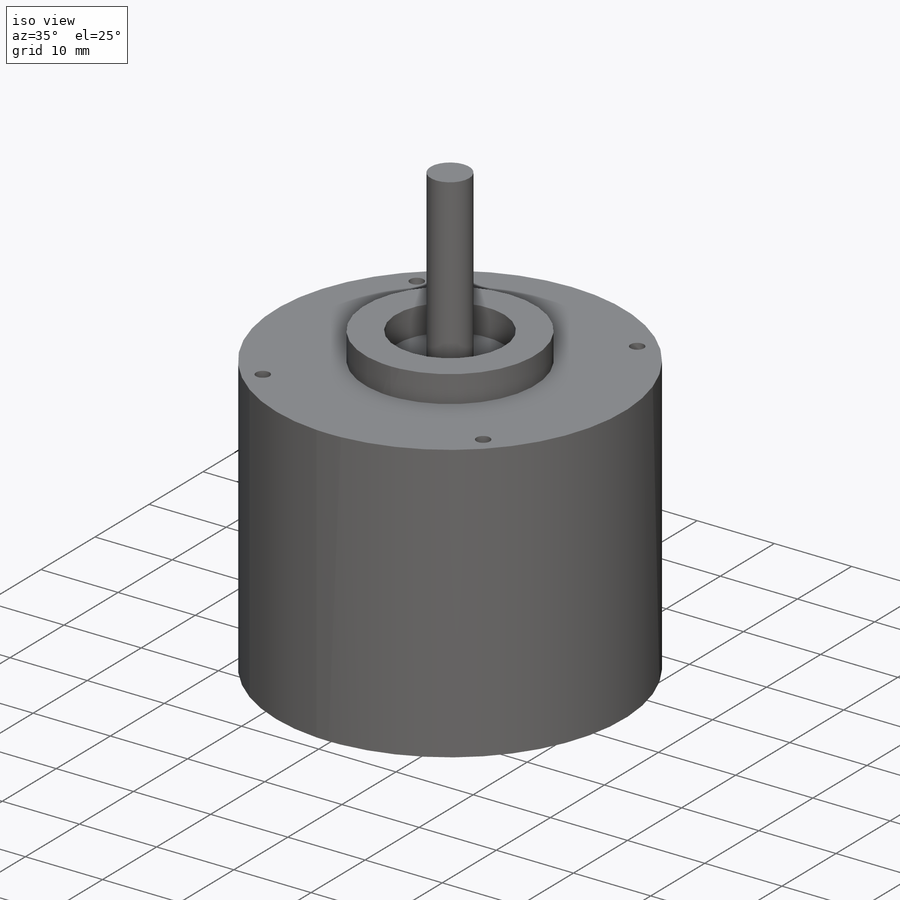
[diagram: iso view]
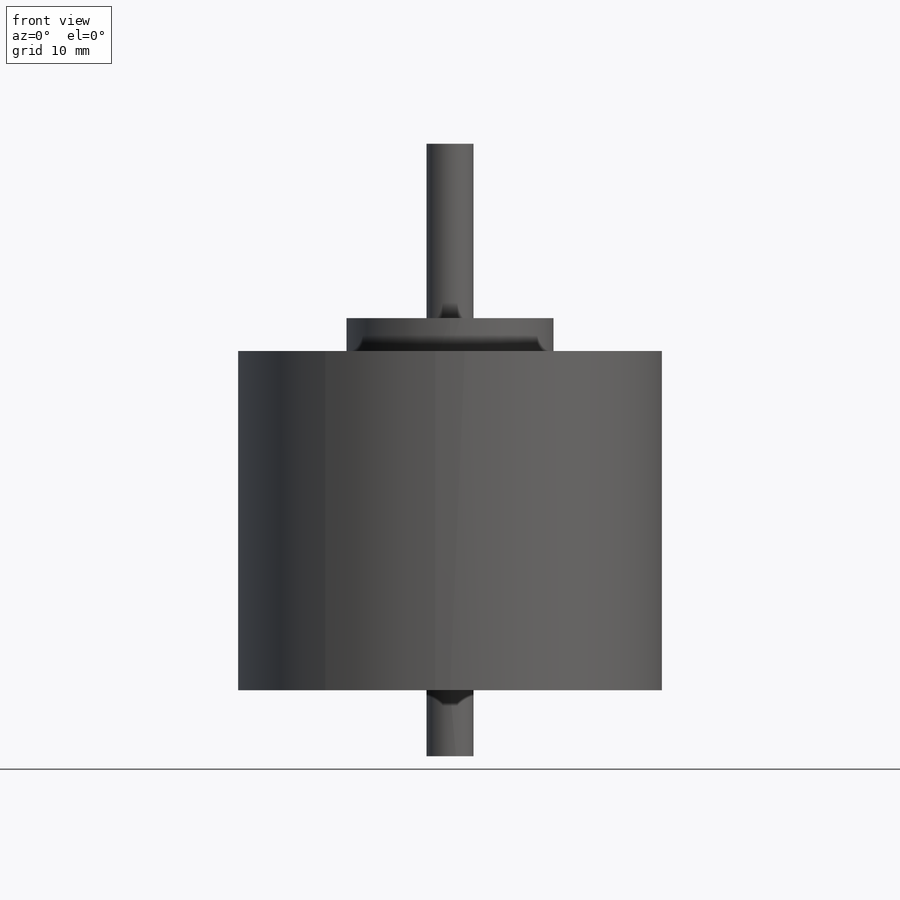
[diagram: front view]
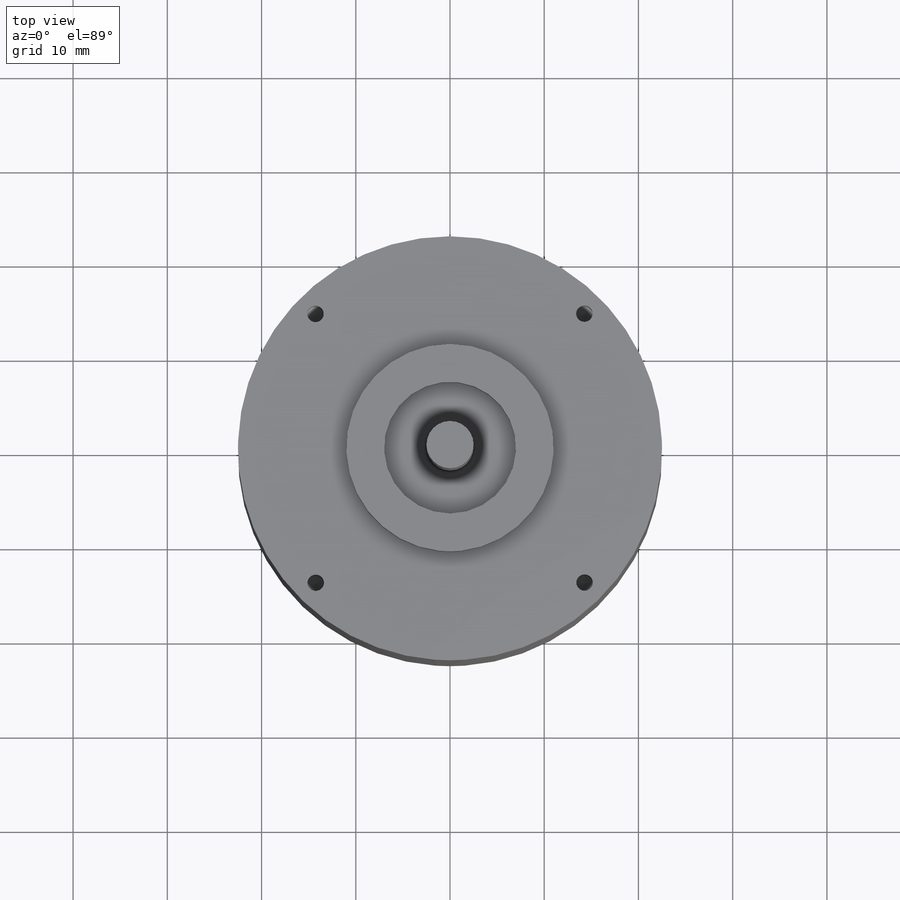
[diagram: top view]
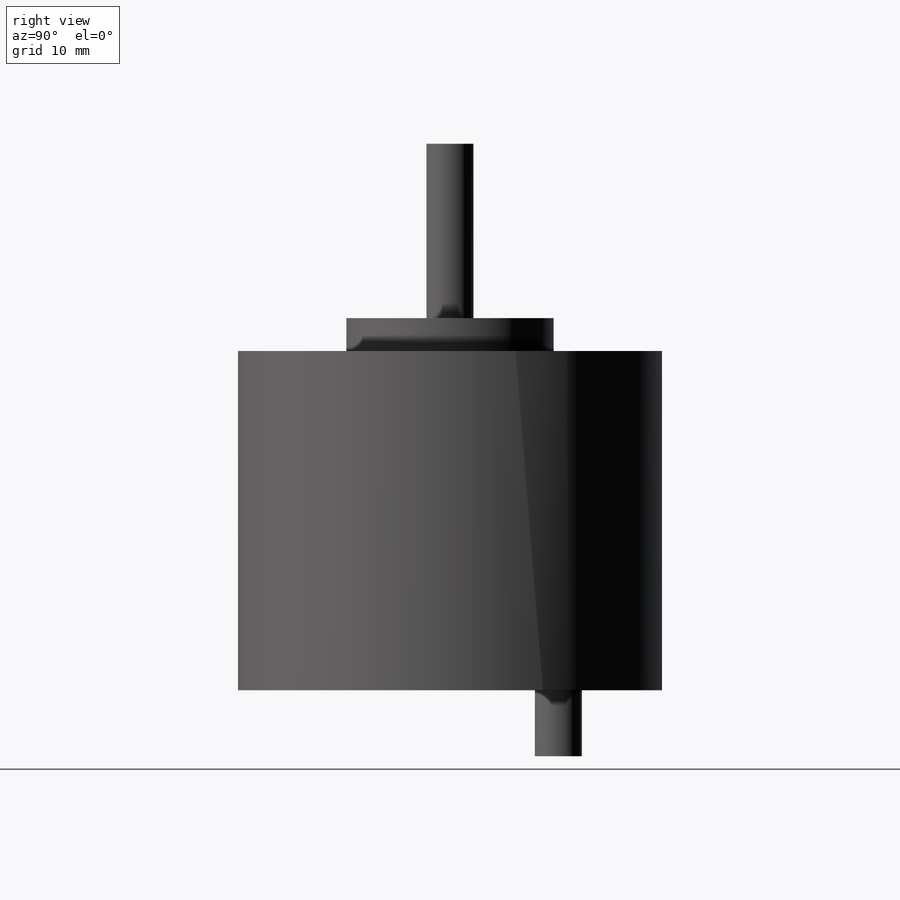
[diagram: right view]
SOLIDWORKS PART (.sldprt)
format: sldprt  version: not decoded by parser v0  size: 265,728 bytes
history: native  units: mm
features: sketch x12, thread x8, extrude x5, hole x2, material x1, cut_extrude x1, fillet x1 (+16 scaffold rows collapsed)
feature tree (46):
  scaffold x16  (default folders/planes/origin — collapsed)
  material  "Material <not specified>"
  sketch  "Sketch1"  dims[D1=45.0mm]
  extrude  "Boss-Extrude1"  Depth=36mm
  sketch  "Sketch2"  dims[D1=~10.908393mm]
  extrude  "Boss-Extrude2"  Depth=3.5mm
  sketch  "Sketch5"  dims[D1=~4.022468mm]
  cut_extrude  "Cut-Extrude1"  Depth=3.5mm
  sketch  "Sketch6"  dims[D1=~2.720843mm]
  extrude  "Boss-Extrude3"  Depth=22mm
  fillet  "Fillet1"  Radius=0.5mm
  sketch  "Sketch7"  dims[D1=34.0mm]
  sketch  "Sketch18"
  hole  "M2.2x0.45 Tapped Hole1"  Diameter=1.75mm Depth=5.75mm
  sketch  "3DSketch6"
  sketch  "Sketch19"  dims[hole-wizard template sketch: 46 standard entries collapsed; hole parameters kept: c15.Tap Drill Dia.=1.75mm c15.Tap Drill Depth=5.75mm c15.D3=~14.816244mm c15.Drill Angle=118.0deg]
  thread  "Hole Thread14"  Diameter=4.4mm  [1 undecoded]
  thread  "Hole Thread15"  Diameter=4.4mm  [1 undecoded]
  thread  "Hole Thread16"  Diameter=4.4mm  [1 undecoded]
  thread  "Hole Thread17"  Diameter=4.4mm  [1 undecoded]
  sketch  "Sketch21"
  extrude  "Boss-Extrude6"  Depth=7mm
  hole  "#0-80 Tapped Hole3"  Diameter=1.19126mm Depth=10mm
  sketch  "3DSketch3"
  sketch  "Sketch14"  dims[hole-wizard template sketch: 47 standard entries collapsed; hole parameters kept: c15.Tap Drill Depth=10.0mm c15.D3=~14.816244mm c15.Drill Angle=118.0deg]
  thread  "Hole Thread6"  Diameter=4mm  [1 undecoded]
  thread  "Hole Thread7"  Diameter=4mm  [1 undecoded]
  thread  "Hole Thread8"  Diameter=4mm  [1 undecoded]
  thread  "Hole Thread9"  Diameter=4mm  [1 undecoded]
  sketch  "Sketch17"
  extrude  "Boss-Extrude5"  Depth=6mm
decode coverage: 24 of 29 modeling features carry decoded parameters
note: ~ marks probable driven/reference dimensions
note: 8 parameter values undecoded
note: suppression state not decoded; provenance and decode notes live in map.json
